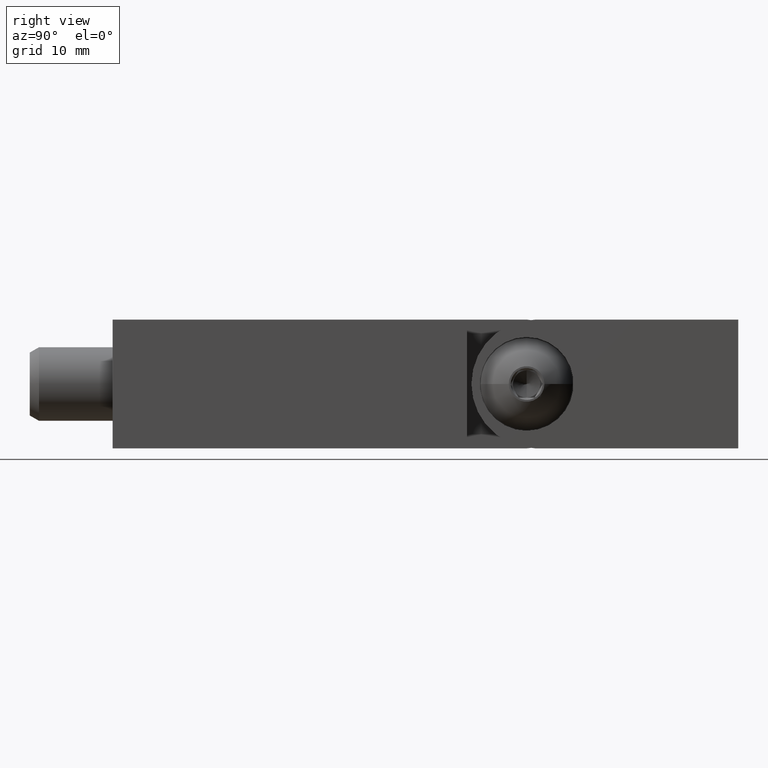
[diagram: clean part render]
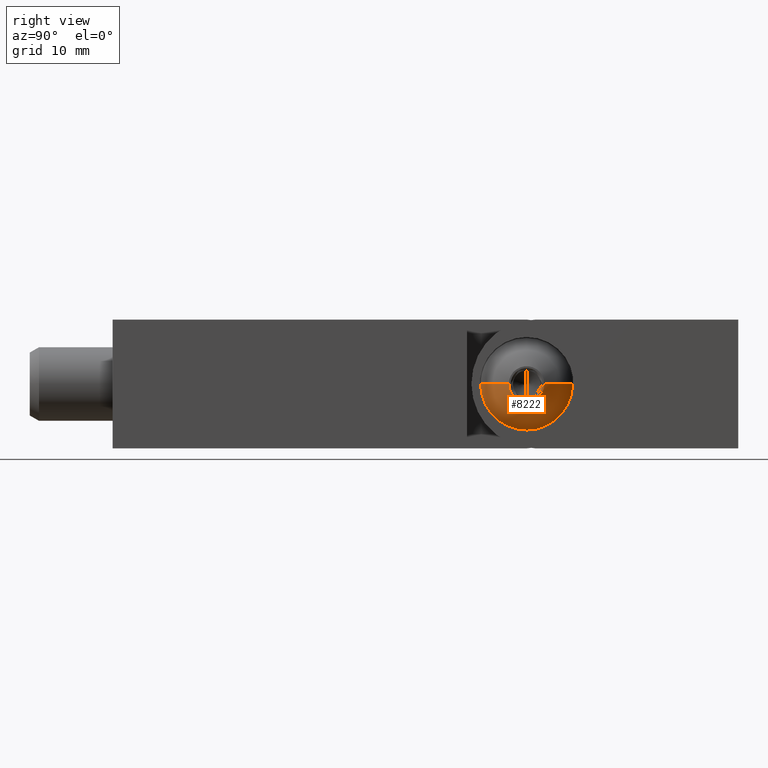
[diagram: same view with one face highlighted and labeled with its STEP entity id]
A machine part, right view. The second image highlights one B-rep face of the part: STEP entity #8222.
In plain terms, the highlighted spherical surface has radius 5.7263 mm.
Its self-contained STEP definition (entity closure, byte-faithful):
#136 = VERTEX_POINT ( 'NONE', #7368 ) ;
#795 = EDGE_CURVE ( 'NONE', #8365, #136, #14148, .T. ) ;
#1068 = AXIS2_PLACEMENT_3D ( 'NONE', #2888, #12042, #13271 ) ;
#1240 = AXIS2_PLACEMENT_3D ( 'NONE', #8431, #1608, #3890 ) ;
#1302 = AXIS2_PLACEMENT_3D ( 'NONE', #8666, #5216, #5165 ) ;
#1320 = FACE_OUTER_BOUND ( 'NONE', #11785, .T. ) ;
#1584 = CARTESIAN_POINT ( 'NONE',  ( -1.933000807568874500, 0.0000000000000000000, 4.245238623737616800E-016 ) ) ;
#1608 = DIRECTION ( 'NONE',  ( 0.0000000000000000000, 0.0000000000000000000, -1.000000000000000000 ) ) ;
#2644 = DIRECTION ( 'NONE',  ( -0.0000000000000000000, -1.000000000000000000, -0.0000000000000000000 ) ) ;
#2658 = EDGE_CURVE ( 'NONE', #14364, #8365, #9865, .T. ) ;
#2888 = CARTESIAN_POINT ( 'NONE',  ( 0.0000000000000000000, 2.599050000000000100, 0.0000000000000000000 ) ) ;
#2920 = SPHERICAL_SURFACE ( 'NONE', #6258, 5.726279027176234500 ) ;
#3122 = CARTESIAN_POINT ( 'NONE',  ( 4.999999999999998200, 2.599050000000000500, 0.0000000000000000000 ) ) ;
#3493 = AXIS2_PLACEMENT_3D ( 'NONE', #9104, #4397, #13765 ) ;
#3865 = CARTESIAN_POINT ( 'NONE',  ( 0.0000000000000000000, 2.599050000000000100, -4.999999999999999100 ) ) ;
#3890 = DIRECTION ( 'NONE',  ( -1.000000000000000000, 0.0000000000000000000, 0.0000000000000000000 ) ) ;
#4019 = EDGE_CURVE ( 'NONE', #8289, #14067, #10396, .T. ) ;
#4397 = DIRECTION ( 'NONE',  ( 1.224646799147353200E-016, -0.0000000000000000000, 1.000000000000000000 ) ) ;
#5165 = DIRECTION ( 'NONE',  ( 0.0000000000000000000, 0.0000000000000000000, -1.000000000000000000 ) ) ;
#5216 = DIRECTION ( 'NONE',  ( -0.0000000000000000000, -1.000000000000000000, -0.0000000000000000000 ) ) ;
#5779 = ORIENTED_EDGE ( 'NONE', *, *, #2658, .F. ) ;
#5906 = DIRECTION ( 'NONE',  ( 1.000000000000000000, 0.0000000000000000000, 0.0000000000000000000 ) ) ;
#6029 = CARTESIAN_POINT ( 'NONE',  ( -4.999999999999999100, 2.599050000000000500, 6.123233995736764300E-016 ) ) ;
#6041 = AXIS2_PLACEMENT_3D ( 'NONE', #12985, #2644, #11852 ) ;
#6258 = AXIS2_PLACEMENT_3D ( 'NONE', #11601, #13829, #5906 ) ;
#7368 = CARTESIAN_POINT ( 'NONE',  ( 1.933000807568874500, 0.0000000000000000000, 0.0000000000000000000 ) ) ;
#7476 = ORIENTED_EDGE ( 'NONE', *, *, #795, .F. ) ;
#7581 = ORIENTED_EDGE ( 'NONE', *, *, #4019, .T. ) ;
#8222 = ADVANCED_FACE ( 'NONE', ( #1320 ), #2920, .T. ) ;
#8289 = VERTEX_POINT ( 'NONE', #3865 ) ;
#8365 = VERTEX_POINT ( 'NONE', #1584 ) ;
#8431 = CARTESIAN_POINT ( 'NONE',  ( -4.336808689942017700E-016, 5.390155783928372000, 0.0000000000000000000 ) ) ;
#8666 = CARTESIAN_POINT ( 'NONE',  ( 0.0000000000000000000, 2.599050000000000100, 0.0000000000000000000 ) ) ;
#9104 = CARTESIAN_POINT ( 'NONE',  ( -4.336808689942017700E-016, 5.390155783928372000, 0.0000000000000000000 ) ) ;
#9306 = ORIENTED_EDGE ( 'NONE', *, *, #10438, .T. ) ;
#9488 = CIRCLE ( 'NONE', #1240, 5.726279027176234500 ) ;
#9865 = CIRCLE ( 'NONE', #3493, 5.726279027176234500 ) ;
#10012 = CIRCLE ( 'NONE', #1068, 4.999999999999999100 ) ;
#10396 = CIRCLE ( 'NONE', #1302, 4.999999999999999100 ) ;
#10438 = EDGE_CURVE ( 'NONE', #14067, #136, #9488, .T. ) ;
#11601 = CARTESIAN_POINT ( 'NONE',  ( -4.336808689942017700E-016, 5.390155783928372000, 0.0000000000000000000 ) ) ;
#11785 = EDGE_LOOP ( 'NONE', ( #5779, #14399, #7581, #9306, #7476 ) ) ;
#11852 = DIRECTION ( 'NONE',  ( 0.0000000000000000000, 0.0000000000000000000, -1.000000000000000000 ) ) ;
#12042 = DIRECTION ( 'NONE',  ( -0.0000000000000000000, -1.000000000000000000, -0.0000000000000000000 ) ) ;
#12424 = EDGE_CURVE ( 'NONE', #14364, #8289, #10012, .T. ) ;
#12985 = CARTESIAN_POINT ( 'NONE',  ( 0.0000000000000000000, 0.0000000000000000000, 0.0000000000000000000 ) ) ;
#13271 = DIRECTION ( 'NONE',  ( 0.0000000000000000000, 0.0000000000000000000, -1.000000000000000000 ) ) ;
#13765 = DIRECTION ( 'NONE',  ( 1.000000000000000000, 0.0000000000000000000, -1.224646799147353200E-016 ) ) ;
#13829 = DIRECTION ( 'NONE',  ( 0.0000000000000000000, 0.0000000000000000000, 1.000000000000000000 ) ) ;
#14067 = VERTEX_POINT ( 'NONE', #3122 ) ;
#14148 = CIRCLE ( 'NONE', #6041, 1.933000807568874500 ) ;
#14364 = VERTEX_POINT ( 'NONE', #6029 ) ;
#14399 = ORIENTED_EDGE ( 'NONE', *, *, #12424, .T. ) ;